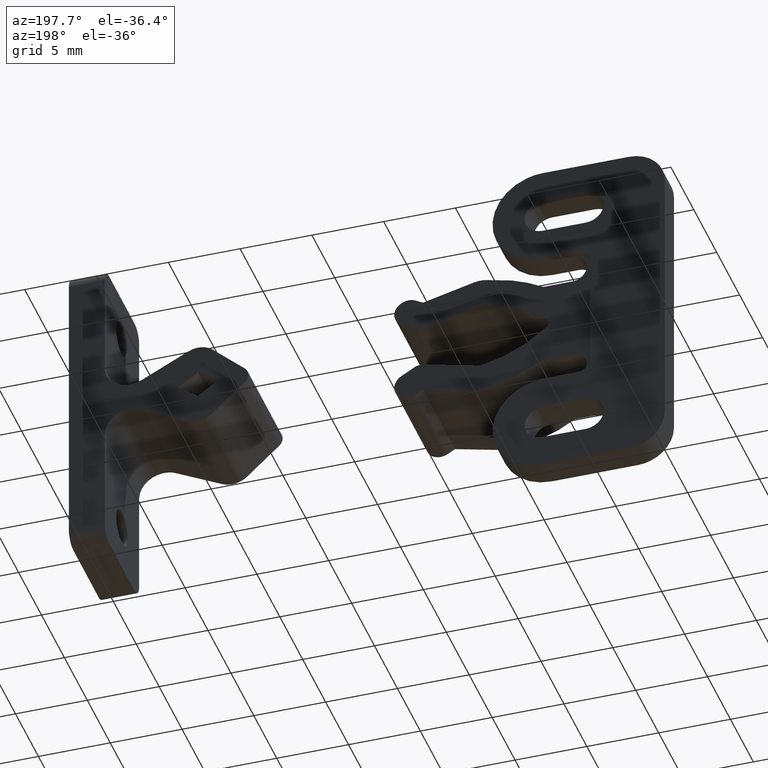
[diagram: clean part render]
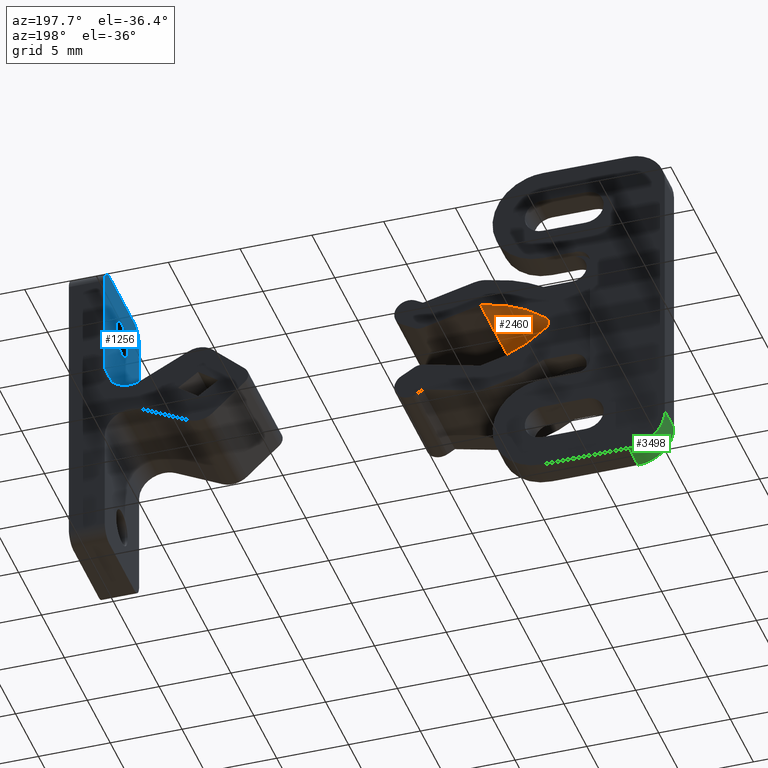
[diagram: same view with three faces highlighted in distinct colors, each labeled with its STEP entity id]
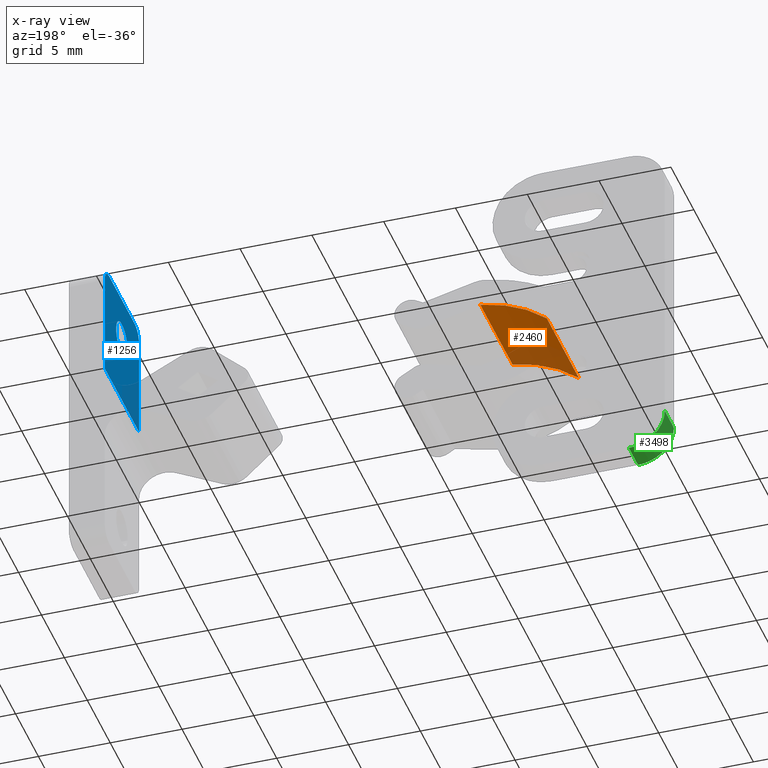
[diagram: x-ray of the same camera — body ghosted, the three highlighted faces saturated]
A machine part, auxiliary view with three faces highlighted in distinct colors.
The next image is the same camera in x-ray (body ghosted, the three faces saturated) — at least one of them is partly hidden behind the body in this view.
Their STEP definitions:

[orange] entity #2460 — the highlighted face is a freeform B-spline surface patch.
#1941=CARTESIAN_POINT('',(8.376159901582239,-7.499999999999840,0.351025739718918));
#1942=VERTEX_POINT('',#1941);
#1956=CARTESIAN_POINT('',(12.999998733024499,-7.499999999999840,2.499999222226050));
#1957=VERTEX_POINT('',#1956);
#1958=CARTESIAN_POINT('',(12.999998733024510,-7.499999999999840,2.499999222226046));
#1959=CARTESIAN_POINT('',(10.370712737163522,-7.499999999999841,2.108374288713661));
#1960=CARTESIAN_POINT('',(8.376159901582241,-7.499999999999840,0.351025739718919));
#1968=(BOUNDED_CURVE()B_SPLINE_CURVE(2,(#1958,#1959,#1960),.UNSPECIFIED.,.F.,.U.)CURVE()GEOMETRIC_REPRESENTATION_ITEM()QUASI_UNIFORM_CURVE()RATIONAL_B_SPLINE_CURVE((1.0,0.959040845807382,1.0))REPRESENTATION_ITEM(''));
#1969=EDGE_CURVE('',#1957,#1942,#1968,.T.);
#2107=CARTESIAN_POINT('',(12.999998733024499,-0.499999999999834,2.499999222226050));
#2108=VERTEX_POINT('',#2107);
#2114=CARTESIAN_POINT('',(8.376159901582239,-0.499999999999834,0.351025739718918));
#2115=VERTEX_POINT('',#2114);
#2116=CARTESIAN_POINT('',(12.999998733024510,-0.499999999999834,2.499999222226046));
#2117=CARTESIAN_POINT('',(10.370712737163522,-0.499999999999834,2.108374288713661));
#2118=CARTESIAN_POINT('',(8.376159901582241,-0.499999999999834,0.351025739718919));
#2126=(BOUNDED_CURVE()B_SPLINE_CURVE(2,(#2116,#2117,#2118),.UNSPECIFIED.,.F.,.U.)CURVE()GEOMETRIC_REPRESENTATION_ITEM()QUASI_UNIFORM_CURVE()RATIONAL_B_SPLINE_CURVE((1.0,0.959040845807382,1.0))REPRESENTATION_ITEM(''));
#2127=EDGE_CURVE('',#2108,#2115,#2126,.T.);
#2426=CARTESIAN_POINT('',(12.999998733024499,-0.499999999999834,2.499999222226050));
#2427=CARTESIAN_POINT('',(12.999998733024499,-7.499999999999840,2.499999222226050));
#2428=QUASI_UNIFORM_CURVE('',1,(#2426,#2427),.UNSPECIFIED.,.F.,.U.);
#2429=EDGE_CURVE('',#2108,#1957,#2428,.T.);
#2436=CARTESIAN_POINT('',(8.201430409921059,-0.324999999999834,0.192965755208125));
#2437=CARTESIAN_POINT('',(8.201430409921059,-7.679374999999841,0.192965755208125));
#2438=CARTESIAN_POINT('',(10.346169676211845,-0.324999999999834,2.184755676485417));
#2439=CARTESIAN_POINT('',(10.346169676211845,-7.679374999999841,2.184755676485417));
#2440=CARTESIAN_POINT('',(13.252234092548287,-0.324999999999834,2.533930731399711));
#2441=CARTESIAN_POINT('',(13.252234092548287,-7.679374999999841,2.533930731399711));
#2449=(BOUNDED_SURFACE()B_SPLINE_SURFACE(1,2,((#2436,#2438,#2440),(#2437,#2439,#2441)),.UNSPECIFIED.,.F.,.F.,.U.)B_SPLINE_SURFACE_WITH_KNOTS((2,2),(3,3),(0.0,7.354375000000008),(0.0,5.706824027949651),.UNSPECIFIED.)GEOMETRIC_REPRESENTATION_ITEM()RATIONAL_B_SPLINE_SURFACE(((1.0,0.949699003941984,0.997322511427109),(1.0,0.949699003941984,0.997322511427109)))REPRESENTATION_ITEM('')SURFACE());
#2450=ORIENTED_EDGE('',*,*,#1969,.T.);
#2451=CARTESIAN_POINT('',(8.376159901582239,-0.499999999999834,0.351025739718918));
#2452=CARTESIAN_POINT('',(8.376159901582239,-7.499999999999840,0.351025739718918));
#2453=QUASI_UNIFORM_CURVE('',1,(#2451,#2452),.UNSPECIFIED.,.F.,.U.);
#2454=EDGE_CURVE('',#2115,#1942,#2453,.T.);
#2455=ORIENTED_EDGE('',*,*,#2454,.F.);
#2456=ORIENTED_EDGE('',*,*,#2127,.F.);
#2457=ORIENTED_EDGE('',*,*,#2429,.T.);
#2458=EDGE_LOOP('',(#2450,#2455,#2456,#2457));
#2459=FACE_OUTER_BOUND('',#2458,.T.);
#2460=ADVANCED_FACE('',(#2459),#2449,.F.);

[blue] entity #1256 — the highlighted face is a freeform B-spline surface patch.
#62=CARTESIAN_POINT('',(19.0,0.0,9.0));
#63=VERTEX_POINT('',#62);
#64=CARTESIAN_POINT('',(19.0,-1.246146667161945,7.848073869716534));
#65=VERTEX_POINT('',#64);
#66=CARTESIAN_POINT('',(19.0,0.0,9.0));
#67=CARTESIAN_POINT('',(19.000000000000007,-1.155488114467233,9.000000000000002));
#68=CARTESIAN_POINT('',(19.0,-1.246146667161945,7.848073869716534));
#76=(BOUNDED_CURVE()B_SPLINE_CURVE(2,(#66,#67,#68),.UNSPECIFIED.,.F.,.U.)B_SPLINE_CURVE_WITH_KNOTS((3,3),(0.0,0.236331300617160),.UNSPECIFIED.)CURVE()GEOMETRIC_REPRESENTATION_ITEM()RATIONAL_B_SPLINE_CURVE((1.0,0.723120658623482,0.969723356139244))REPRESENTATION_ITEM(''));
#77=EDGE_CURVE('',#63,#65,#76,.T.);
#79=CARTESIAN_POINT('',(19.0,1.246146667161945,7.651926130283465));
#80=VERTEX_POINT('',#79);
#81=CARTESIAN_POINT('',(19.0,1.246146667161945,7.651926130283465));
#82=CARTESIAN_POINT('',(19.000000000000007,1.250000000000000,7.700887366183421));
#83=CARTESIAN_POINT('',(19.0,1.250000000000000,7.750000000000000));
#84=CARTESIAN_POINT('',(18.999999999999993,1.250000000000000,9.000000000000002));
#85=CARTESIAN_POINT('',(19.0,0.0,9.0));
#93=(BOUNDED_CURVE()B_SPLINE_CURVE(2,(#81,#82,#83,#84,#85),.UNSPECIFIED.,.F.,.U.)B_SPLINE_CURVE_WITH_KNOTS((3,2,3),(0.736331300617159,0.750000000000000,1.0),.UNSPECIFIED.)CURVE()GEOMETRIC_REPRESENTATION_ITEM()RATIONAL_B_SPLINE_CURVE((0.969723356139244,0.983986122563065,1.0,0.707106781186548,1.0))REPRESENTATION_ITEM(''));
#94=EDGE_CURVE('',#80,#63,#93,.T.);
#161=CARTESIAN_POINT('',(19.0,0.0,6.500000000000000));
#162=VERTEX_POINT('',#161);
#163=CARTESIAN_POINT('',(19.000000000000004,-1.246146667161945,7.848073869716533));
#164=CARTESIAN_POINT('',(19.000000000000004,-1.250000000000000,7.799112633816578));
#165=CARTESIAN_POINT('',(19.0,-1.250000000000000,7.750000000000000));
#166=CARTESIAN_POINT('',(18.999999999999993,-1.250000000000000,6.500000000000001));
#167=CARTESIAN_POINT('',(19.0,0.0,6.500000000000000));
#175=(BOUNDED_CURVE()B_SPLINE_CURVE(2,(#163,#164,#165,#166,#167),.UNSPECIFIED.,.F.,.U.)B_SPLINE_CURVE_WITH_KNOTS((3,2,3),(0.236331300617160,0.250000000000000,0.500000000000000),.UNSPECIFIED.)CURVE()GEOMETRIC_REPRESENTATION_ITEM()RATIONAL_B_SPLINE_CURVE((0.969723356139244,0.983986122563066,1.0,0.707106781186548,1.0))REPRESENTATION_ITEM(''));
#176=EDGE_CURVE('',#65,#162,#175,.T.);
#210=CARTESIAN_POINT('',(19.0,0.0,6.500000000000000));
#211=CARTESIAN_POINT('',(19.000000000000004,1.155488114467226,6.500000000000001));
#212=CARTESIAN_POINT('',(19.0,1.246146667161945,7.651926130283465));
#220=(BOUNDED_CURVE()B_SPLINE_CURVE(2,(#210,#211,#212),.UNSPECIFIED.,.F.,.U.)B_SPLINE_CURVE_WITH_KNOTS((3,3),(0.500000000000000,0.736331300617159),.UNSPECIFIED.)CURVE()GEOMETRIC_REPRESENTATION_ITEM()RATIONAL_B_SPLINE_CURVE((1.0,0.723120658623483,0.969723356139242))REPRESENTATION_ITEM(''));
#221=EDGE_CURVE('',#162,#80,#220,.T.);
#551=CARTESIAN_POINT('',(19.0,-2.750000000000000,11.0));
#552=VERTEX_POINT('',#551);
#558=CARTESIAN_POINT('',(19.0,-3.750000000000000,10.0));
#559=VERTEX_POINT('',#558);
#560=CARTESIAN_POINT('',(19.0,-3.750000000000000,10.0));
#561=CARTESIAN_POINT('',(18.999999999999993,-3.749999999999999,11.0));
#562=CARTESIAN_POINT('',(19.0,-2.750000000000000,11.0));
#570=(BOUNDED_CURVE()B_SPLINE_CURVE(2,(#560,#561,#562),.UNSPECIFIED.,.F.,.U.)CURVE()GEOMETRIC_REPRESENTATION_ITEM()QUASI_UNIFORM_CURVE()RATIONAL_B_SPLINE_CURVE((1.0,0.707106781186548,1.0))REPRESENTATION_ITEM(''));
#571=EDGE_CURVE('',#559,#552,#570,.T.);
#612=CARTESIAN_POINT('',(19.0,3.750000000000000,10.0));
#613=VERTEX_POINT('',#612);
#619=CARTESIAN_POINT('',(19.0,2.750000000000000,11.0));
#620=VERTEX_POINT('',#619);
#621=CARTESIAN_POINT('',(19.0,2.750000000000000,11.0));
#622=CARTESIAN_POINT('',(18.999999999999993,3.749999999999999,11.0));
#623=CARTESIAN_POINT('',(19.0,3.750000000000000,10.0));
#631=(BOUNDED_CURVE()B_SPLINE_CURVE(2,(#621,#622,#623),.UNSPECIFIED.,.F.,.U.)CURVE()GEOMETRIC_REPRESENTATION_ITEM()QUASI_UNIFORM_CURVE()RATIONAL_B_SPLINE_CURVE((1.0,0.707106781186548,1.0))REPRESENTATION_ITEM(''));
#632=EDGE_CURVE('',#620,#613,#631,.T.);
#775=CARTESIAN_POINT('',(19.0,2.750000000000000,11.0));
#776=CARTESIAN_POINT('',(19.0,-2.750000000000000,11.0));
#777=QUASI_UNIFORM_CURVE('',1,(#775,#776),.UNSPECIFIED.,.F.,.U.);
#778=EDGE_CURVE('',#620,#552,#777,.T.);
#1158=CARTESIAN_POINT('',(19.0,-3.750000000000000,2.750000000000000));
#1159=VERTEX_POINT('',#1158);
#1175=CARTESIAN_POINT('',(19.0,3.750000000000000,2.750000000000000));
#1176=VERTEX_POINT('',#1175);
#1177=CARTESIAN_POINT('',(19.0,3.750000000000000,2.750000000000000));
#1178=CARTESIAN_POINT('',(19.0,-3.750000000000000,2.750000000000000));
#1179=QUASI_UNIFORM_CURVE('',1,(#1177,#1178),.UNSPECIFIED.,.F.,.U.);
#1180=EDGE_CURVE('',#1176,#1159,#1179,.T.);
#1229=CARTESIAN_POINT('',(19.0,-4.124624985463544,2.337912515990100));
#1230=CARTESIAN_POINT('',(19.0,-4.124624985463544,11.412087705292141));
#1231=CARTESIAN_POINT('',(19.0,4.124625186629221,2.337912515990100));
#1232=CARTESIAN_POINT('',(19.0,4.124625186629221,11.412087705292141));
#1233=B_SPLINE_SURFACE_WITH_KNOTS('',1,1,((#1229,#1231),(#1230,#1232)),.UNSPECIFIED.,.F.,.F.,.U.,(2,2),(2,2),(0.0,9.074175189302041),(0.0,8.249250172092765),.UNSPECIFIED.);
#1234=ORIENTED_EDGE('',*,*,#778,.F.);
#1235=ORIENTED_EDGE('',*,*,#632,.T.);
#1236=CARTESIAN_POINT('',(19.0,3.750000000000000,10.0));
#1237=CARTESIAN_POINT('',(19.0,3.750000000000000,2.750000000000000));
#1238=QUASI_UNIFORM_CURVE('',1,(#1236,#1237),.UNSPECIFIED.,.F.,.U.);
#1239=EDGE_CURVE('',#613,#1176,#1238,.T.);
#1240=ORIENTED_EDGE('',*,*,#1239,.T.);
#1241=ORIENTED_EDGE('',*,*,#1180,.T.);
#1242=CARTESIAN_POINT('',(19.0,-3.750000000000000,10.0));
#1243=CARTESIAN_POINT('',(19.0,-3.750000000000000,2.750000000000000));
#1244=QUASI_UNIFORM_CURVE('',1,(#1242,#1243),.UNSPECIFIED.,.F.,.U.);
#1245=EDGE_CURVE('',#559,#1159,#1244,.T.);
#1246=ORIENTED_EDGE('',*,*,#1245,.F.);
#1247=ORIENTED_EDGE('',*,*,#571,.T.);
#1248=EDGE_LOOP('',(#1234,#1235,#1240,#1241,#1246,#1247));
#1249=FACE_OUTER_BOUND('',#1248,.T.);
#1250=ORIENTED_EDGE('',*,*,#221,.T.);
#1251=ORIENTED_EDGE('',*,*,#94,.T.);
#1252=ORIENTED_EDGE('',*,*,#77,.T.);
#1253=ORIENTED_EDGE('',*,*,#176,.T.);
#1254=EDGE_LOOP('',(#1250,#1251,#1252,#1253));
#1255=FACE_BOUND('',#1254,.T.);
#1256=ADVANCED_FACE('',(#1249,#1255),#1233,.T.);

[green] entity #3498 — the highlighted face is a freeform B-spline surface patch.
#3215=CARTESIAN_POINT('',(4.440892E-014,-1.999999999999780,-9.499999607300909));
#3216=VERTEX_POINT('',#3215);
#3222=CARTESIAN_POINT('',(2.500000000000000,-1.999999999999780,-12.0));
#3223=VERTEX_POINT('',#3222);
#3224=CARTESIAN_POINT('',(3.079134E-014,-1.999999999999780,-9.499999607300907));
#3225=CARTESIAN_POINT('',(-0.000000162661277,-1.999999999999781,-10.535533628252537));
#3226=CARTESIAN_POINT('',(0.732232908193541,-1.999999999999780,-11.267766814126270));
#3227=CARTESIAN_POINT('',(1.464465979048360,-1.999999999999781,-12.0));
#3228=CARTESIAN_POINT('',(2.500000000000000,-1.999999999999780,-12.0));
#3236=(BOUNDED_CURVE()B_SPLINE_CURVE(2,(#3224,#3225,#3226,#3227,#3228),.UNSPECIFIED.,.F.,.U.)B_SPLINE_CURVE_WITH_KNOTS((3,2,3),(0.0,0.500000000000000,1.0),.UNSPECIFIED.)CURVE()GEOMETRIC_REPRESENTATION_ITEM()RATIONAL_B_SPLINE_CURVE((1.0,0.923879517483342,1.0,0.923879517483342,1.0))REPRESENTATION_ITEM(''));
#3237=EDGE_CURVE('',#3216,#3223,#3236,.T.);
#3376=CARTESIAN_POINT('',(2.500000000000000,0.0,-12.0));
#3377=VERTEX_POINT('',#3376);
#3383=CARTESIAN_POINT('',(4.440892E-014,0.0,-9.499999607300909));
#3384=VERTEX_POINT('',#3383);
#3385=CARTESIAN_POINT('',(3.079134E-014,0.0,-9.499999607300907));
#3386=CARTESIAN_POINT('',(-0.000000162661277,0.0,-10.535533628252537));
#3387=CARTESIAN_POINT('',(0.732232908193541,0.0,-11.267766814126270));
#3388=CARTESIAN_POINT('',(1.464465979048360,0.0,-12.0));
#3389=CARTESIAN_POINT('',(2.500000000000000,0.0,-12.0));
#3397=(BOUNDED_CURVE()B_SPLINE_CURVE(2,(#3385,#3386,#3387,#3388,#3389),.UNSPECIFIED.,.F.,.U.)B_SPLINE_CURVE_WITH_KNOTS((3,2,3),(0.0,0.500000000000000,1.0),.UNSPECIFIED.)CURVE()GEOMETRIC_REPRESENTATION_ITEM()RATIONAL_B_SPLINE_CURVE((1.0,0.923879517483342,1.0,0.923879517483342,1.0))REPRESENTATION_ITEM(''));
#3398=EDGE_CURVE('',#3384,#3377,#3397,.T.);
#3470=CARTESIAN_POINT('',(2.609048076088011,0.049999999999995,-11.997620571083910));
#3471=CARTESIAN_POINT('',(2.609048076088011,-2.051249999999775,-11.997620571083910));
#3472=CARTESIAN_POINT('',(-0.190150564131254,0.049999999999995,-12.119835782568819));
#3473=CARTESIAN_POINT('',(-0.190150564131254,-2.051249999999774,-12.119835782568819));
#3474=CARTESIAN_POINT('',(0.006142712818403,0.049999999999995,-9.324854828295955));
#3475=CARTESIAN_POINT('',(0.006142712818403,-2.051249999999775,-9.324854828295955));
#3483=(BOUNDED_SURFACE()B_SPLINE_SURFACE(1,2,((#3470,#3472,#3474),(#3471,#3473,#3475)),.UNSPECIFIED.,.F.,.F.,.U.)B_SPLINE_SURFACE_WITH_KNOTS((2,2),(3,3),(0.0,2.101249999999769),(0.0,4.479355807612686),.UNSPECIFIED.)GEOMETRIC_REPRESENTATION_ITEM()RATIONAL_B_SPLINE_SURFACE(((1.0,0.664513939036452,0.996233481165812),(1.0,0.664513939036452,0.996233481165812)))REPRESENTATION_ITEM('')SURFACE());
#3484=ORIENTED_EDGE('',*,*,#3237,.F.);
#3485=CARTESIAN_POINT('',(4.440892E-014,0.0,-9.499999607300909));
#3486=CARTESIAN_POINT('',(4.440892E-014,-1.999999999999780,-9.499999607300909));
#3487=QUASI_UNIFORM_CURVE('',1,(#3485,#3486),.UNSPECIFIED.,.F.,.U.);
#3488=EDGE_CURVE('',#3384,#3216,#3487,.T.);
#3489=ORIENTED_EDGE('',*,*,#3488,.F.);
#3490=ORIENTED_EDGE('',*,*,#3398,.T.);
#3491=CARTESIAN_POINT('',(2.500000000000000,0.0,-12.0));
#3492=CARTESIAN_POINT('',(2.500000000000000,-1.999999999999780,-12.0));
#3493=QUASI_UNIFORM_CURVE('',1,(#3491,#3492),.UNSPECIFIED.,.F.,.U.);
#3494=EDGE_CURVE('',#3377,#3223,#3493,.T.);
#3495=ORIENTED_EDGE('',*,*,#3494,.T.);
#3496=EDGE_LOOP('',(#3484,#3489,#3490,#3495));
#3497=FACE_OUTER_BOUND('',#3496,.T.);
#3498=ADVANCED_FACE('',(#3497),#3483,.T.);